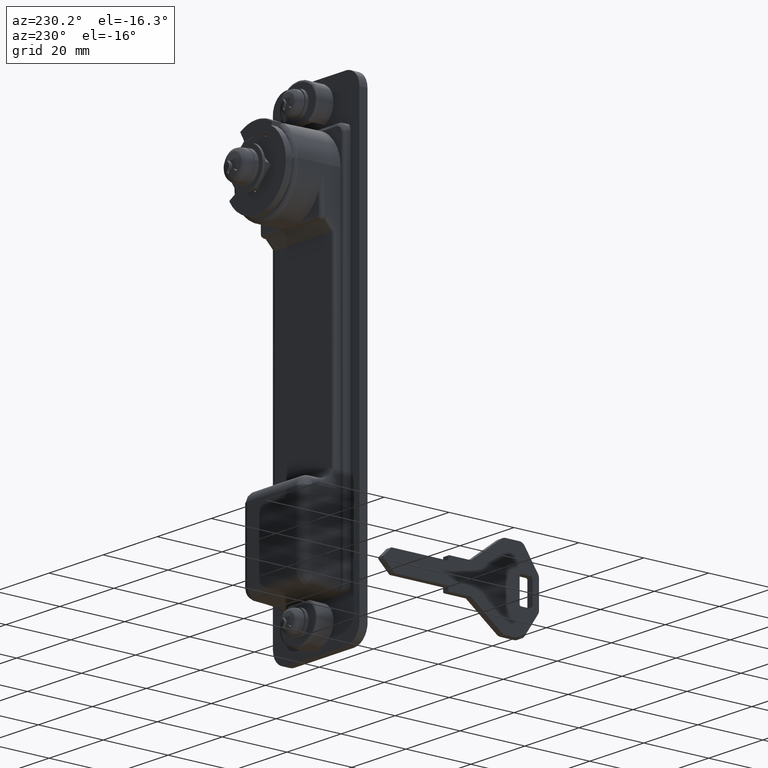
[diagram: clean part render]
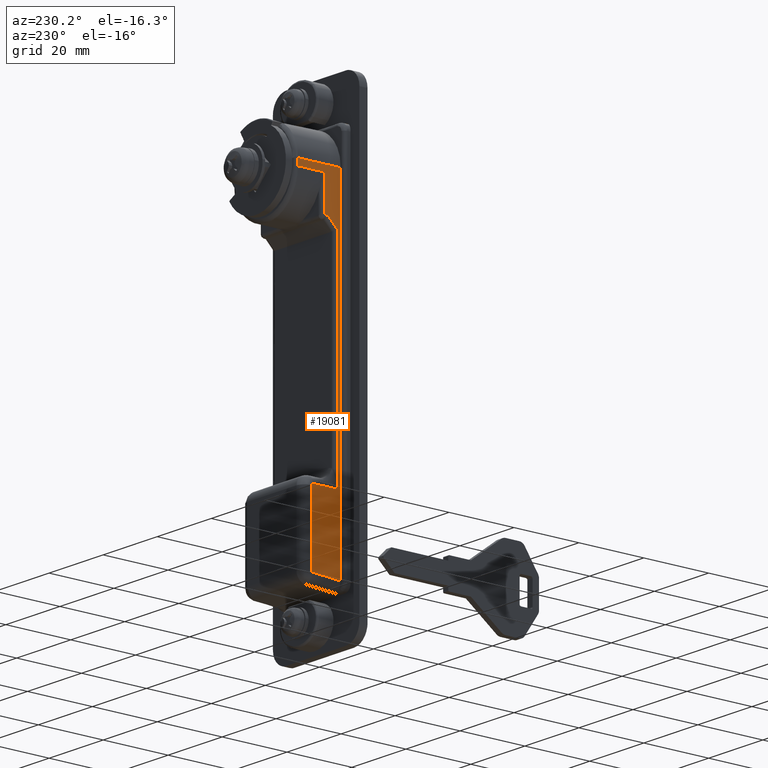
[diagram: same view with one face highlighted and labeled with its STEP entity id]
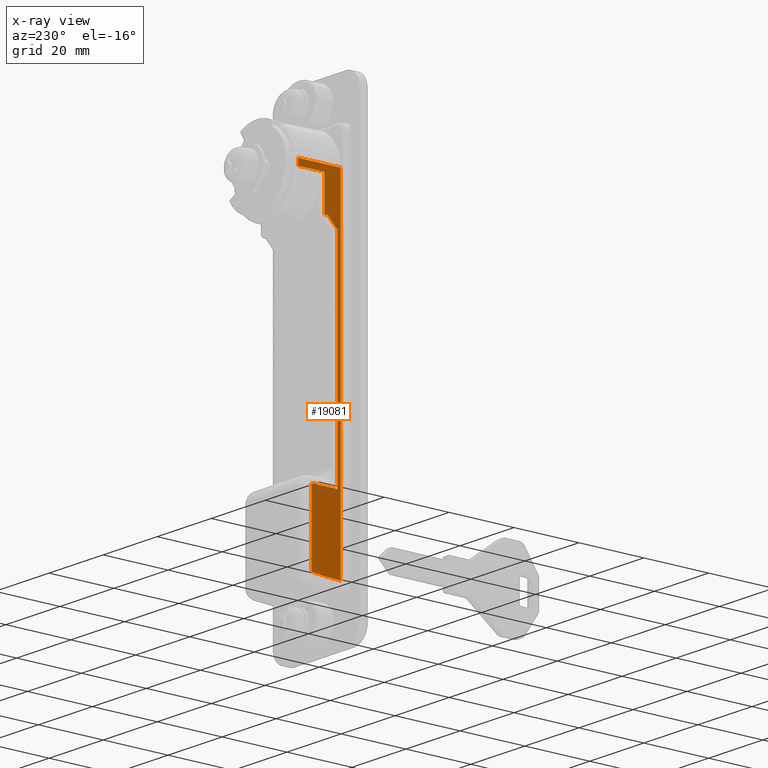
[diagram: x-ray of the same camera — body ghosted, the highlighted face saturated]
A machine part, auxiliary view. The second image highlights one B-rep face of the part: STEP entity #19081.
The next image is the same camera in x-ray: the body ghosted, the highlighted face saturated — about 0% of this face is hidden behind the body in this view.
In plain terms, the highlighted face is a freeform B-spline surface patch.
Its self-contained STEP definition (entity closure, byte-faithful):
#16029=CARTESIAN_POINT('',(12.100000000000000,11.500000000000000,-79.0));
#16030=VERTEX_POINT('',#16029);
#16044=CARTESIAN_POINT('',(11.600000000000000,11.500000000000000,-78.500000000000000));
#16045=VERTEX_POINT('',#16044);
#16046=CARTESIAN_POINT('',(11.600000000000000,11.500000000000000,-78.500000000000000));
#16047=CARTESIAN_POINT('',(12.099999999999998,11.500000000000000,-78.500000000000000));
#16048=CARTESIAN_POINT('',(12.100000000000000,11.500000000000000,-79.0));
#16056=(BOUNDED_CURVE()B_SPLINE_CURVE(2,(#16046,#16047,#16048),.UNSPECIFIED.,.F.,.U.)CURVE()GEOMETRIC_REPRESENTATION_ITEM()QUASI_UNIFORM_CURVE()RATIONAL_B_SPLINE_CURVE((1.0,0.707106781186548,1.0))REPRESENTATION_ITEM(''));
#16057=EDGE_CURVE('',#16045,#16030,#16056,.T.);
#16106=CARTESIAN_POINT('',(12.100000000000000,11.500000000000000,-99.939431657379203));
#16107=VERTEX_POINT('',#16106);
#16121=CARTESIAN_POINT('',(12.100000000000000,11.500000000000000,-79.0));
#16122=CARTESIAN_POINT('',(12.100000000000000,11.500000000000000,-99.939431657379203));
#16123=QUASI_UNIFORM_CURVE('',1,(#16121,#16122),.UNSPECIFIED.,.F.,.U.);
#16124=EDGE_CURVE('',#16030,#16107,#16123,.T.);
#16168=CARTESIAN_POINT('',(11.652736318408040,11.500000000000000,-100.436642760152200));
#16169=VERTEX_POINT('',#16168);
#16185=CARTESIAN_POINT('',(12.100000000000000,11.500000000000000,-99.939431657379203));
#16186=CARTESIAN_POINT('',(12.100000000000000,11.499999999999998,-100.389204077079300));
#16187=CARTESIAN_POINT('',(11.652736318408040,11.500000000000000,-100.436642760152200));
#16195=(BOUNDED_CURVE()B_SPLINE_CURVE(2,(#16185,#16186,#16187),.UNSPECIFIED.,.F.,.U.)CURVE()GEOMETRIC_REPRESENTATION_ITEM()QUASI_UNIFORM_CURVE()RATIONAL_B_SPLINE_CURVE((1.0,0.743462385335024,1.0))REPRESENTATION_ITEM(''));
#16196=EDGE_CURVE('',#16107,#16169,#16195,.T.);
#16629=CARTESIAN_POINT('',(4.0,11.500000000000000,-78.500000000000000));
#16630=VERTEX_POINT('',#16629);
#18997=CARTESIAN_POINT('',(2.340660025584342,11.500000000000000,-106.074104760057490));
#18998=CARTESIAN_POINT('',(16.859340328467429,11.500000000000000,-106.074104760057490));
#18999=CARTESIAN_POINT('',(2.340660025584342,11.500000000000000,6.093913240686513));
#19000=CARTESIAN_POINT('',(16.859340328467429,11.500000000000000,6.093913240686513));
#19001=B_SPLINE_SURFACE_WITH_KNOTS('',1,1,((#18997,#18999),(#18998,#19000)),.UNSPECIFIED.,.F.,.F.,.U.,(2,2),(2,2),(0.0,14.518680302883080),(0.0,112.168018000744000),.UNSPECIFIED.);
#19002=CARTESIAN_POINT('',(4.0,11.500000000000000,-78.500000000000000));
#19003=CARTESIAN_POINT('',(11.600000000000000,11.500000000000000,-78.500000000000000));
#19004=QUASI_UNIFORM_CURVE('',1,(#19002,#19003),.UNSPECIFIED.,.F.,.U.);
#19005=EDGE_CURVE('',#16630,#16045,#19004,.T.);
#19006=ORIENTED_EDGE('',*,*,#19005,.T.);
#19007=ORIENTED_EDGE('',*,*,#16057,.T.);
#19008=ORIENTED_EDGE('',*,*,#16124,.T.);
#19009=ORIENTED_EDGE('',*,*,#16196,.T.);
#19010=CARTESIAN_POINT('',(3.000000000000170,11.500000000000000,-100.980196078240990));
#19011=VERTEX_POINT('',#19010);
#19012=CARTESIAN_POINT('',(11.652736318408120,11.500000000000000,-100.436642760152400));
#19013=CARTESIAN_POINT('',(7.338043507609825,11.499999999999996,-100.894277379801350));
#19014=CARTESIAN_POINT('',(3.000000000000227,11.500000000000000,-100.980196078240990));
#19022=(BOUNDED_CURVE()B_SPLINE_CURVE(2,(#19012,#19013,#19014),.UNSPECIFIED.,.F.,.U.)CURVE()GEOMETRIC_REPRESENTATION_ITEM()QUASI_UNIFORM_CURVE()RATIONAL_B_SPLINE_CURVE((1.0,0.999078522405438,1.0))REPRESENTATION_ITEM(''));
#19023=EDGE_CURVE('',#16169,#19011,#19022,.T.);
#19024=ORIENTED_EDGE('',*,*,#19023,.T.);
#19025=CARTESIAN_POINT('',(3.000000000000225,11.500000000000000,1.0));
#19026=VERTEX_POINT('',#19025);
#19027=CARTESIAN_POINT('',(3.000000000000170,11.500000000000000,-100.980196078240990));
#19028=CARTESIAN_POINT('',(3.000000000000225,11.500000000000000,1.0));
#19029=QUASI_UNIFORM_CURVE('',1,(#19027,#19028),.UNSPECIFIED.,.F.,.U.);
#19030=EDGE_CURVE('',#19011,#19026,#19029,.T.);
#19031=ORIENTED_EDGE('',*,*,#19030,.T.);
#19032=CARTESIAN_POINT('',(16.199999999999999,11.500000000000000,1.0));
#19033=VERTEX_POINT('',#19032);
#19034=CARTESIAN_POINT('',(16.199999999999999,11.500000000000000,1.0));
#19035=CARTESIAN_POINT('',(3.000000000000225,11.500000000000000,1.0));
#19036=QUASI_UNIFORM_CURVE('',1,(#19034,#19035),.UNSPECIFIED.,.F.,.U.);
#19037=EDGE_CURVE('',#19033,#19026,#19036,.T.);
#19038=ORIENTED_EDGE('',*,*,#19037,.F.);
#19039=CARTESIAN_POINT('',(16.199999999999999,11.500000000000000,-1.0));
#19040=VERTEX_POINT('',#19039);
#19041=CARTESIAN_POINT('',(16.199999999999999,11.500000000000000,1.0));
#19042=CARTESIAN_POINT('',(16.199999999999999,11.500000000000000,-1.0));
#19043=QUASI_UNIFORM_CURVE('',1,(#19041,#19042),.UNSPECIFIED.,.F.,.U.);
#19044=EDGE_CURVE('',#19033,#19040,#19043,.T.);
#19045=ORIENTED_EDGE('',*,*,#19044,.T.);
#19046=CARTESIAN_POINT('',(8.000000000000171,11.500000000000000,-1.0));
#19047=VERTEX_POINT('',#19046);
#19048=CARTESIAN_POINT('',(16.199999999999999,11.500000000000000,-1.0));
#19049=CARTESIAN_POINT('',(8.000000000000171,11.500000000000000,-1.0));
#19050=QUASI_UNIFORM_CURVE('',1,(#19048,#19049),.UNSPECIFIED.,.F.,.U.);
#19051=EDGE_CURVE('',#19040,#19047,#19050,.T.);
#19052=ORIENTED_EDGE('',*,*,#19051,.T.);
#19053=CARTESIAN_POINT('',(8.000000000000171,11.500000000000000,-11.500000000000160));
#19054=VERTEX_POINT('',#19053);
#19055=CARTESIAN_POINT('',(8.000000000000171,11.500000000000000,-1.0));
#19056=CARTESIAN_POINT('',(8.000000000000171,11.500000000000000,-11.500000000000160));
#19057=QUASI_UNIFORM_CURVE('',1,(#19055,#19056),.UNSPECIFIED.,.F.,.U.);
#19058=EDGE_CURVE('',#19047,#19054,#19057,.T.);
#19059=ORIENTED_EDGE('',*,*,#19058,.T.);
#19060=CARTESIAN_POINT('',(7.036248437626980,11.500000000000000,-11.500000000000000));
#19061=VERTEX_POINT('',#19060);
#19062=CARTESIAN_POINT('',(8.000000000000171,11.500000000000000,-11.500000000000160));
#19063=CARTESIAN_POINT('',(7.036248437626980,11.500000000000000,-11.500000000000000));
#19064=QUASI_UNIFORM_CURVE('',1,(#19062,#19063),.UNSPECIFIED.,.F.,.U.);
#19065=EDGE_CURVE('',#19054,#19061,#19064,.T.);
#19066=ORIENTED_EDGE('',*,*,#19065,.T.);
#19067=CARTESIAN_POINT('',(4.0,11.500000000000000,-14.536248437626980));
#19068=VERTEX_POINT('',#19067);
#19069=CARTESIAN_POINT('',(7.036248437626980,11.500000000000000,-11.500000000000000));
#19070=CARTESIAN_POINT('',(4.0,11.500000000000000,-14.536248437626980));
#19071=QUASI_UNIFORM_CURVE('',1,(#19069,#19070),.UNSPECIFIED.,.F.,.U.);
#19072=EDGE_CURVE('',#19061,#19068,#19071,.T.);
#19073=ORIENTED_EDGE('',*,*,#19072,.T.);
#19074=CARTESIAN_POINT('',(4.0,11.500000000000000,-14.536248437626980));
#19075=CARTESIAN_POINT('',(4.0,11.500000000000000,-78.500000000000000));
#19076=QUASI_UNIFORM_CURVE('',1,(#19074,#19075),.UNSPECIFIED.,.F.,.U.);
#19077=EDGE_CURVE('',#19068,#16630,#19076,.T.);
#19078=ORIENTED_EDGE('',*,*,#19077,.T.);
#19079=EDGE_LOOP('',(#19006,#19007,#19008,#19009,#19024,#19031,#19038,#19045,#19052,#19059,#19066,#19073,#19078));
#19080=FACE_OUTER_BOUND('',#19079,.T.);
#19081=ADVANCED_FACE('',(#19080),#19001,.F.);